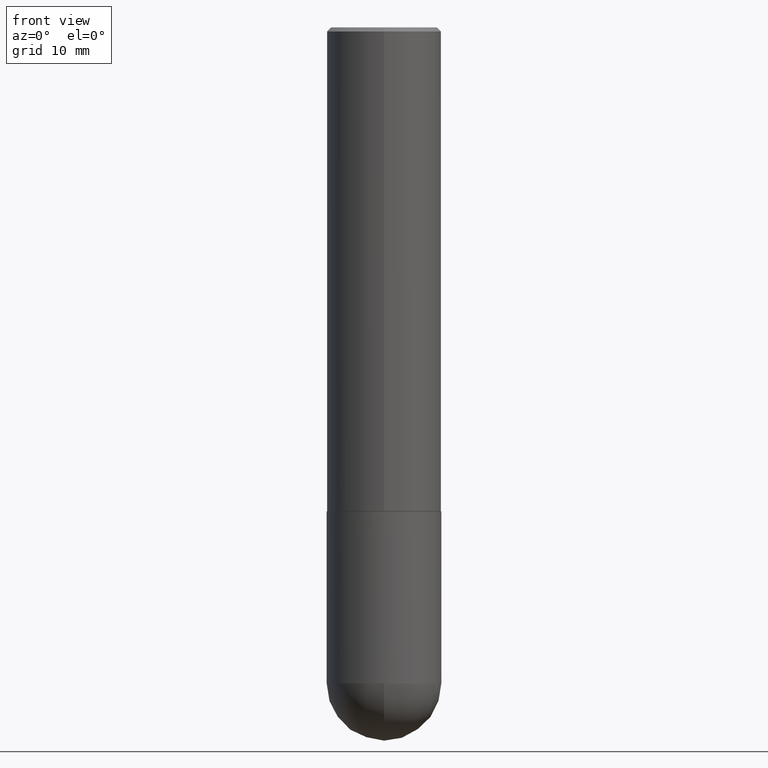
[diagram: clean part render]
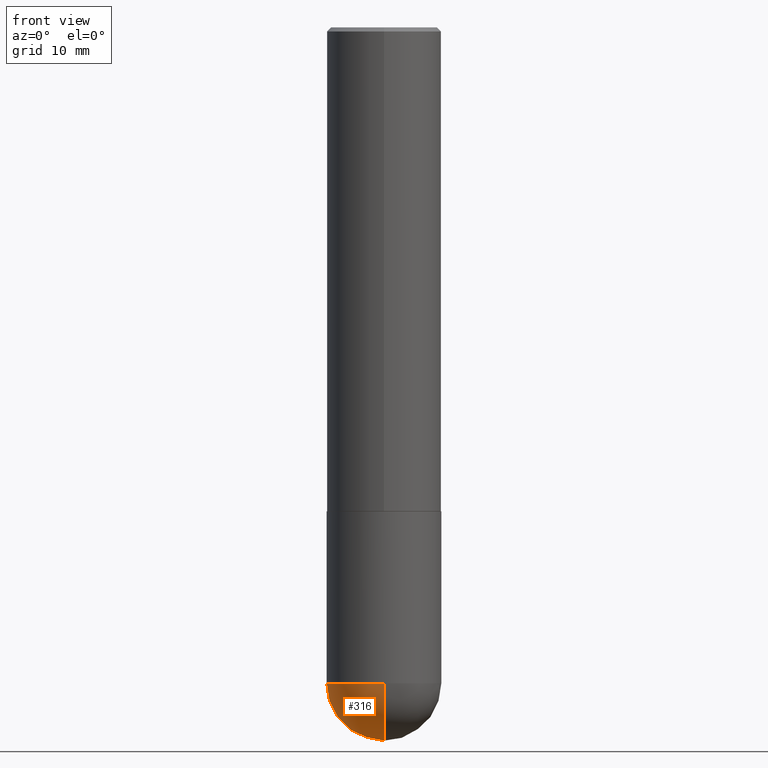
[diagram: same view with one face highlighted and labeled with its STEP entity id]
A machine part, front view. The second image highlights one B-rep face of the part: STEP entity #316.
In plain terms, the highlighted spherical surface has radius 7.1438 mm.
Its self-contained STEP definition (entity closure, byte-faithful):
#2 = VERTEX_POINT ( 'NONE', #383 ) ;
#5 = VERTEX_POINT ( 'NONE', #91 ) ;
#8 = EDGE_CURVE ( 'NONE', #71, #2, #405, .T. ) ;
#18 = DIRECTION ( 'NONE',  ( -2.445468806185136597E-29, 3.491481338843145583E-15, 1.000000000000000000 ) ) ;
#28 = ORIENTED_EDGE ( 'NONE', *, *, #261, .F. ) ;
#47 = DIRECTION ( 'NONE',  ( 6.982962677686265133E-15, 1.000000000000000000, 0.000000000000000000 ) ) ;
#50 = AXIS2_PLACEMENT_3D ( 'NONE', #277, #309, #252 ) ;
#53 = DIRECTION ( 'NONE',  ( -2.445468806185136597E-29, 3.491481338843145583E-15, 1.000000000000000000 ) ) ;
#57 = CARTESIAN_POINT ( 'NONE',  ( 1.963958253099340610E-15, 0.2812499999999886757, -3.218750000000000888 ) ) ;
#66 = CARTESIAN_POINT ( 'NONE',  ( 8.240046819675677659E-29, -1.267714545847805119E-14, -3.500000000000000000 ) ) ;
#71 = VERTEX_POINT ( 'NONE', #66 ) ;
#72 = VERTEX_POINT ( 'NONE', #57 ) ;
#73 = CIRCLE ( 'NONE', #120, 0.2812500000000003331 ) ;
#81 = AXIS2_PLACEMENT_3D ( 'NONE', #391, #244, #378 ) ;
#91 = CARTESIAN_POINT ( 'NONE',  ( -0.2812500000000000555, -7.766835425251639371E-15, -3.218749999999999556 ) ) ;
#114 = CARTESIAN_POINT ( 'NONE',  ( 7.540232941994521053E-29, -1.171238792754142562E-14, -3.218749999999999556 ) ) ;
#115 = CIRCLE ( 'NONE', #305, 0.2812500000000000555 ) ;
#120 = AXIS2_PLACEMENT_3D ( 'NONE', #114, #175, #47 ) ;
#159 = CIRCLE ( 'NONE', #278, 0.2812500000000000555 ) ;
#175 = DIRECTION ( 'NONE',  ( 1.000000000000000000, -6.982962677686265922E-15, 4.883557194083112340E-29 ) ) ;
#185 = EDGE_LOOP ( 'NONE', ( #28, #272, #190, #375 ) ) ;
#190 = ORIENTED_EDGE ( 'NONE', *, *, #250, .F. ) ;
#233 = DIRECTION ( 'NONE',  ( 1.000000000000000000, -6.982962677686268288E-15, 0.000000000000000000 ) ) ;
#244 = DIRECTION ( 'NONE',  ( -1.000000000000000000, 6.982962677686265922E-15, -4.883557194083112901E-29 ) ) ;
#250 = EDGE_CURVE ( 'NONE', #5, #2, #159, .T. ) ;
#252 = DIRECTION ( 'NONE',  ( -7.105427357601001859E-15, -1.000000000000000000, 0.000000000000000000 ) ) ;
#261 = EDGE_CURVE ( 'NONE', #71, #72, #73, .T. ) ;
#262 = DIRECTION ( 'NONE',  ( 1.000000000000000000, -6.982962677686268288E-15, 0.000000000000000000 ) ) ;
#272 = ORIENTED_EDGE ( 'NONE', *, *, #8, .T. ) ;
#277 = CARTESIAN_POINT ( 'NONE',  ( 7.540232941994521053E-29, -1.171238792754142562E-14, -3.218749999999999556 ) ) ;
#278 = AXIS2_PLACEMENT_3D ( 'NONE', #313, #18, #233 ) ;
#305 = AXIS2_PLACEMENT_3D ( 'NONE', #365, #53, #262 ) ;
#309 = DIRECTION ( 'NONE',  ( -1.000000000000000000, 7.105427357601001070E-15, -4.926315508542082329E-29 ) ) ;
#313 = CARTESIAN_POINT ( 'NONE',  ( 7.871352719908407300E-29, -1.123820555940137375E-14, -3.218749999999999556 ) ) ;
#316 = ADVANCED_FACE ( 'NONE', ( #411 ), #382, .T. ) ;
#365 = CARTESIAN_POINT ( 'NONE',  ( 7.871352719908407300E-29, -1.123820555940137375E-14, -3.218749999999999556 ) ) ;
#368 = EDGE_CURVE ( 'NONE', #72, #5, #115, .T. ) ;
#375 = ORIENTED_EDGE ( 'NONE', *, *, #368, .F. ) ;
#378 = DIRECTION ( 'NONE',  ( 6.982962677686265922E-15, 1.000000000000000000, -3.885294924322502955E-15 ) ) ;
#382 = SPHERICAL_SURFACE ( 'NONE', #81, 0.2812500000000003331 ) ;
#383 = CARTESIAN_POINT ( 'NONE',  ( -1.998401444325206042E-15, -0.2812500000000116573, -3.218749999999998668 ) ) ;
#391 = CARTESIAN_POINT ( 'NONE',  ( 7.540232941994521053E-29, -1.171238792754142562E-14, -3.218749999999999556 ) ) ;
#405 = CIRCLE ( 'NONE', #50, 0.2812500000000003331 ) ;
#411 = FACE_OUTER_BOUND ( 'NONE', #185, .T. ) ;